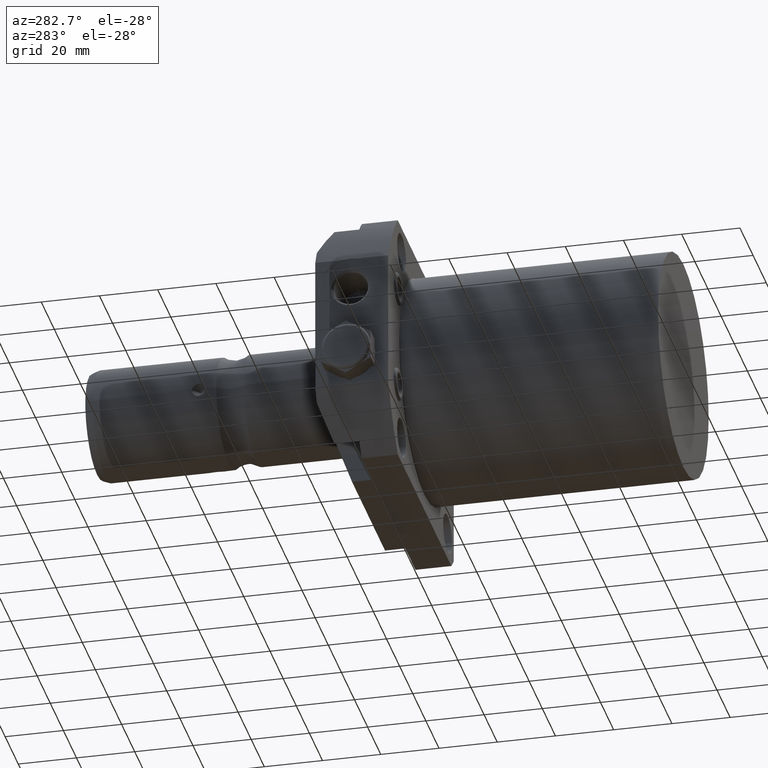
[diagram: clean part render]
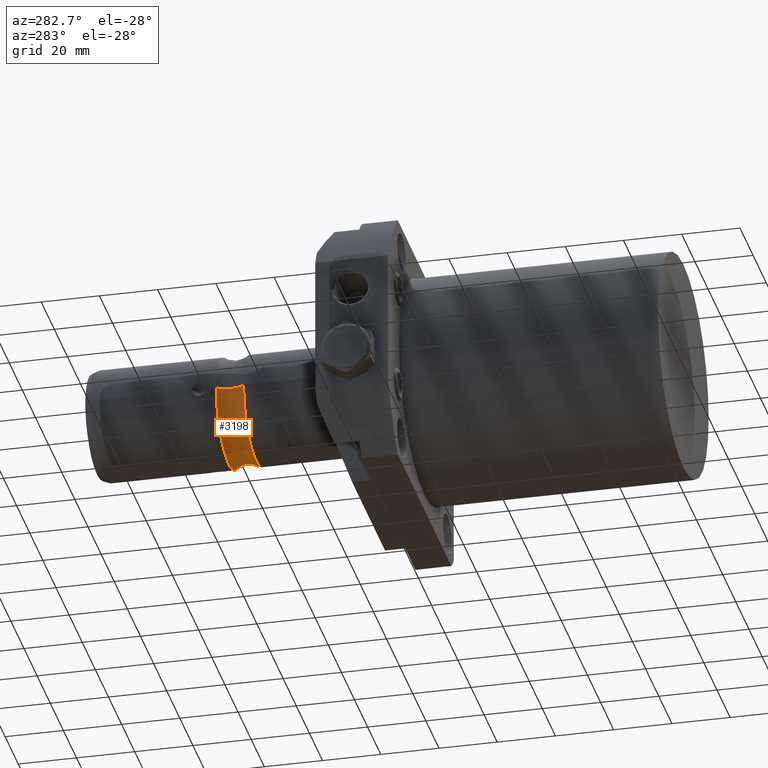
[diagram: same view with one face highlighted and labeled with its STEP entity id]
A machine part, auxiliary view. The second image highlights one B-rep face of the part: STEP entity #3198.
In plain terms, the highlighted toroidal blend (fillet) surface has major radius 25.4253 mm and minor (blend) radius 7.9248 mm.
Its self-contained STEP definition (entity closure, byte-faithful):
#866=CARTESIAN_POINT('',(2.54253E1,1.5146E2,0.E0));
#867=DIRECTION('',(0.E0,0.E0,-1.E0));
#868=DIRECTION('',(-8.044745608722E-1,-5.939871050027E-1,0.E0));
#869=AXIS2_PLACEMENT_3D('',#866,#867,#868);
#871=CARTESIAN_POINT('',(-2.54253E1,1.5146E2,0.E0));
#872=DIRECTION('',(0.E0,0.E0,1.E0));
#873=DIRECTION('',(8.044745608722E-1,-5.939871050027E-1,0.E0));
#874=AXIS2_PLACEMENT_3D('',#871,#872,#873);
#876=CARTESIAN_POINT('',(0.E0,1.467527709903E2,0.E0));
#877=DIRECTION('',(0.E0,1.E0,0.E0));
#878=DIRECTION('',(1.E0,0.E0,0.E0));
#879=AXIS2_PLACEMENT_3D('',#876,#877,#878);
#1052=CARTESIAN_POINT('',(0.E0,1.561672290097E2,0.E0));
#1053=DIRECTION('',(0.E0,1.E0,0.E0));
#1054=DIRECTION('',(1.E0,0.E0,0.E0));
#1055=AXIS2_PLACEMENT_3D('',#1052,#1053,#1054);
#1934=CARTESIAN_POINT('',(1.905E1,1.467527709903E2,0.E0));
#1935=CARTESIAN_POINT('',(1.905E1,1.561672290097E2,0.E0));
#1936=VERTEX_POINT('',#1934);
#1937=VERTEX_POINT('',#1935);
#1938=CARTESIAN_POINT('',(-1.905E1,1.467527709903E2,0.E0));
#1939=CARTESIAN_POINT('',(-1.905E1,1.561672290097E2,0.E0));
#1940=VERTEX_POINT('',#1938);
#1941=VERTEX_POINT('',#1939);
#3184=CARTESIAN_POINT('',(0.E0,1.5146E2,0.E0));
#3185=DIRECTION('',(0.E0,-1.E0,0.E0));
#3186=DIRECTION('',(-1.E0,0.E0,0.E0));
#3187=AXIS2_PLACEMENT_3D('',#3184,#3185,#3186);
#3188=TOROIDAL_SURFACE('',#3187,2.54253E1,7.9248E0);
#3190=ORIENTED_EDGE('',*,*,#3189,.T.);
#3192=ORIENTED_EDGE('',*,*,#3191,.T.);
#3194=ORIENTED_EDGE('',*,*,#3193,.F.);
#3195=ORIENTED_EDGE('',*,*,#3178,.F.);
#3196=EDGE_LOOP('',(#3190,#3192,#3194,#3195));
#3197=FACE_OUTER_BOUND('',#3196,.F.);
#870=CIRCLE('',#869,7.9248E0);
#875=CIRCLE('',#874,7.9248E0);
#880=CIRCLE('',#879,1.905E1);
#1056=CIRCLE('',#1055,1.905E1);
#3178=EDGE_CURVE('',#1936,#1940,#880,.T.);
#3189=EDGE_CURVE('',#1936,#1937,#870,.T.);
#3191=EDGE_CURVE('',#1937,#1941,#1056,.T.);
#3193=EDGE_CURVE('',#1940,#1941,#875,.T.);
#3198=ADVANCED_FACE('',(#3197),#3188,.F.);